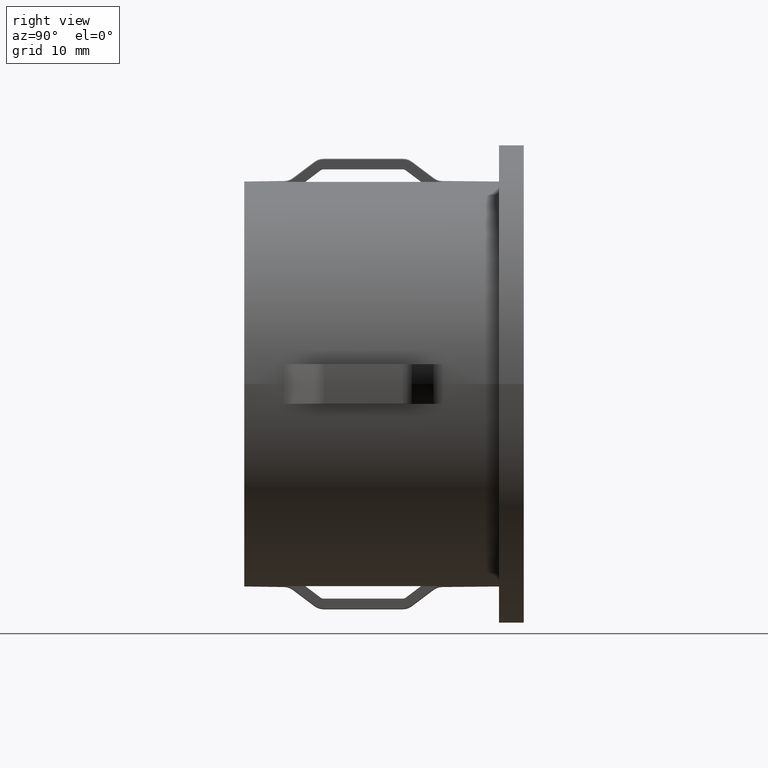
[diagram: clean part render]
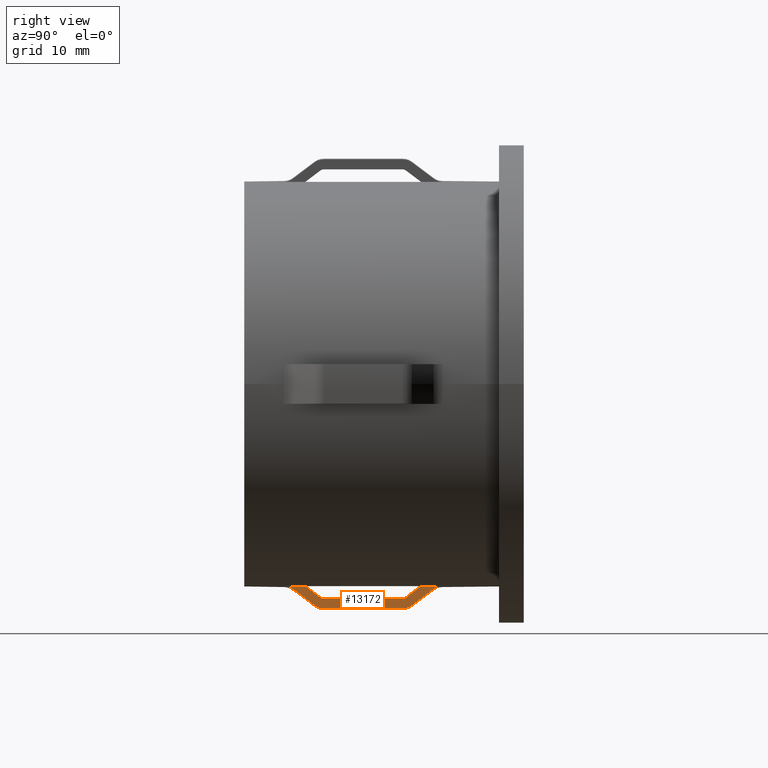
[diagram: same view with one face highlighted and labeled with its STEP entity id]
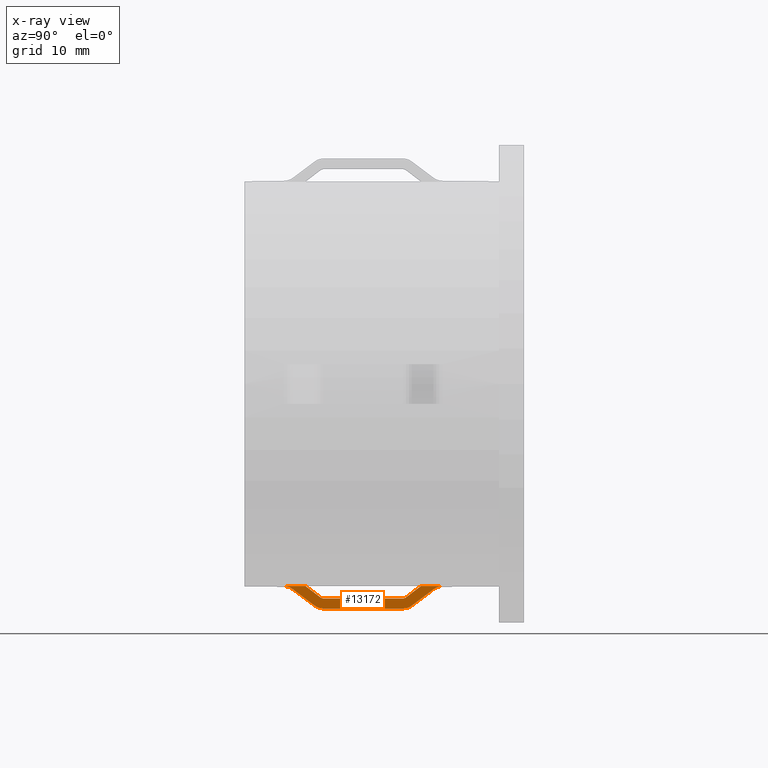
[diagram: x-ray of the same camera — body ghosted, the highlighted face saturated]
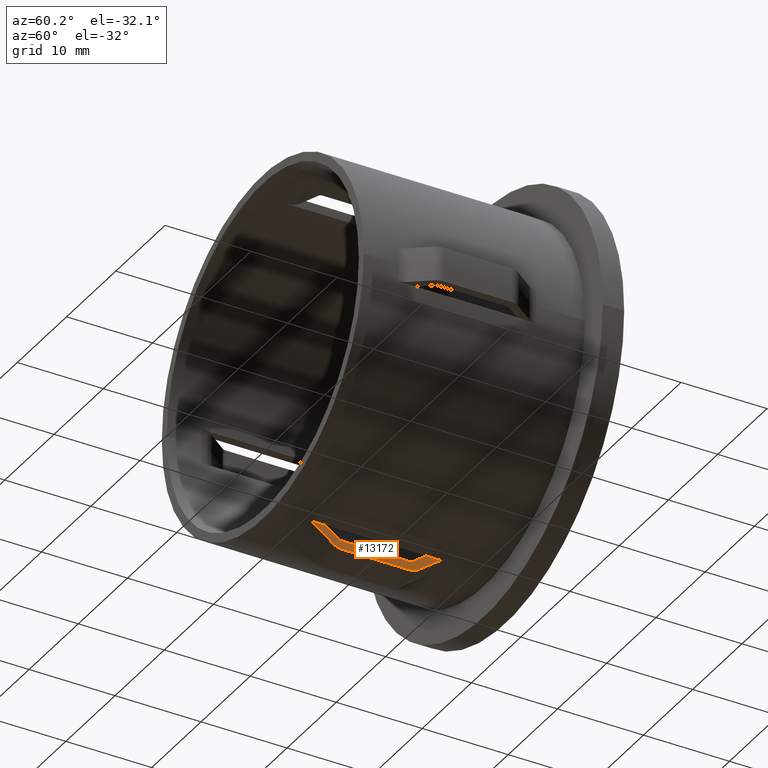
[diagram: same view with one face highlighted and labeled with its STEP entity id]
A machine part, right view. The second image highlights one B-rep face of the part: STEP entity #13172.
The next image is the same camera in x-ray: the body ghosted, the highlighted face saturated — about 0% of this face is hidden behind the body in this view.
A second angle (auxiliary view) of the same face is appended — the face is thin or edge-on in the first view.
In plain terms, the highlighted planar face has unit normal (-1, 0, -0).
Its self-contained STEP definition (entity closure, byte-faithful):
#123 = CARTESIAN_POINT ( 'NONE',  ( 2.000000000000004900, 16.29999999999999400, -21.55742331541504000 ) ) ;
#582 = LINE ( 'NONE', #9172, #8731 ) ;
#649 = DIRECTION ( 'NONE',  ( -1.000000000000000000, 0.0000000000000000000, -6.296814483065258400E-017 ) ) ;
#857 = VERTEX_POINT ( 'NONE', #14539 ) ;
#957 = CARTESIAN_POINT ( 'NONE',  ( 2.000000000000004000, 16.32024693304128200, -22.63607172904884700 ) ) ;
#1173 = CARTESIAN_POINT ( 'NONE',  ( 2.000000000000004900, 6.845021281521681500, -20.91337411212601400 ) ) ;
#1248 = CARTESIAN_POINT ( 'NONE',  ( 2.000000000000004400, 7.893342187878594100, -21.64926511843250600 ) ) ;
#1391 = CARTESIAN_POINT ( 'NONE',  ( 2.000000000000004000, 16.20966438327877800, -21.61478098976090200 ) ) ;
#1421 = CARTESIAN_POINT ( 'NONE',  ( 2.000000000000004900, 7.099999999999995200, -22.36073567662746300 ) ) ;
#1844 = EDGE_CURVE ( 'NONE', #12976, #3058, #12388, .T. ) ;
#2051 = CARTESIAN_POINT ( 'NONE',  ( 2.000000000000004900, 17.80380040649288300, -21.68013897667760000 ) ) ;
#2058 = DIRECTION ( 'NONE',  ( -0.0000000000000000000, -1.000000000000000000, -0.0000000000000000000 ) ) ;
#2165 = EDGE_CURVE ( 'NONE', #12092, #7049, #11131, .T. ) ;
#2392 = CARTESIAN_POINT ( 'NONE',  ( 2.000000000000004900, 7.099999999999995200, -22.36073567662746300 ) ) ;
#2458 = CARTESIAN_POINT ( 'NONE',  ( 2.000000000000004900, 16.58087638457387000, -21.34585242861321000 ) ) ;
#2510 = CARTESIAN_POINT ( 'NONE',  ( 2.000000000000004900, 17.41587950198355700, -20.71679687798204100 ) ) ;
#2527 = CARTESIAN_POINT ( 'NONE',  ( 2.000000000000004900, 15.99999999999999600, -21.65785077056354500 ) ) ;
#2539 = CARTESIAN_POINT ( 'NONE',  ( 2.000000000000004900, 7.791146175831323200, -21.61514054676552000 ) ) ;
#2544 = CARTESIAN_POINT ( 'NONE',  ( 2.000000000000004900, 4.160430435202035100, -20.40220576310315400 ) ) ;
#2558 = CARTESIAN_POINT ( 'NONE',  ( 2.000000000000004900, 5.896510393787133700, -21.45436331679245600 ) ) ;
#2607 = CARTESIAN_POINT ( 'NONE',  ( 2.000000000000004900, 16.48725237048967800, -21.41637797909297800 ) ) ;
#2850 = CARTESIAN_POINT ( 'NONE',  ( 2.000000000000004900, 15.99999999999999600, -21.65785077056354500 ) ) ;
#2889 = CARTESIAN_POINT ( 'NONE',  ( 2.000000000000004900, 19.09999999999999400, -20.70362287137206200 ) ) ;
#3058 = VERTEX_POINT ( 'NONE', #10145 ) ;
#3081 = VERTEX_POINT ( 'NONE', #10384 ) ;
#3159 = CARTESIAN_POINT ( 'NONE',  ( 2.000000000000004900, 19.09999999999999400, -20.70362287137206200 ) ) ;
#3350 = VECTOR ( 'NONE', #2058, 1000.000000000000000 ) ;
#3441 = EDGE_CURVE ( 'NONE', #14585, #14845, #14802, .T. ) ;
#3465 = CARTESIAN_POINT ( 'NONE',  ( 2.000000000000004900, 6.333941285484216100, -20.52826029769647000 ) ) ;
#3484 = CARTESIAN_POINT ( 'NONE',  ( 2.000000000000004900, 19.22829741510356500, -20.60695188349469100 ) ) ;
#3535 = CARTESIAN_POINT ( 'NONE',  ( 2.000000000000004000, 19.83883962512609900, -20.40220576310316500 ) ) ;
#3550 = B_SPLINE_CURVE_WITH_KNOTS ( 'NONE', 3,
 ( #5667, #12608, #3465, #4673, #1173, #12799, #12751 ),
 .UNSPECIFIED., .F., .F.,
 ( 4, 3, 4 ),
 ( 0.004658617423264501900, 0.004972796847549565900, 0.006578419061399639100 ),
 .UNSPECIFIED. ) ;
#3592 = CARTESIAN_POINT ( 'NONE',  ( 2.000000000000004900, 4.899999999999994100, -20.70362287137205800 ) ) ;
#3612 = CARTESIAN_POINT ( 'NONE',  ( 2.000000000000004900, 16.99839244633291500, -21.03134390878813100 ) ) ;
#3632 = VERTEX_POINT ( 'NONE', #12187 ) ;
#3643 = CARTESIAN_POINT ( 'NONE',  ( 2.000000000000004900, 4.628772232002459600, -20.53145604125086300 ) ) ;
#3658 = CARTESIAN_POINT ( 'NONE',  ( 2.000000000000004900, 17.83333333333333900, -20.40220576310316900 ) ) ;
#3722 = CARTESIAN_POINT ( 'NONE',  ( 2.000000000000004900, 16.29999999999999400, -21.55742331541504000 ) ) ;
#3787 = CARTESIAN_POINT ( 'NONE',  ( 2.000000000000004000, 4.770854514726178100, -20.60631286998783900 ) ) ;
#4100 = CARTESIAN_POINT ( 'NONE',  ( 2.000000000000003600, 20.00000000000000000, 1.259362896613053900E-016 ) ) ;
#4318 = ORIENTED_EDGE ( 'NONE', *, *, #2165, .T. ) ;
#4332 = CARTESIAN_POINT ( 'NONE',  ( 2.000000000000004900, 20.00000000000000000, -20.40220576310316900 ) ) ;
#4465 = CARTESIAN_POINT ( 'NONE',  ( 2.000000000000004900, 16.29999999999999400, -21.55742331541504000 ) ) ;
#4546 = B_SPLINE_CURVE_WITH_KNOTS ( 'NONE', 3,
 ( #2527, #9296, #7569, #1391, #13314, #3722 ),
 .UNSPECIFIED., .F., .F.,
 ( 4, 2, 4 ),
 ( 0.002964423728254255400, 0.003124331397023042600, 0.003284239065791829900 ),
 .UNSPECIFIED. ) ;
#4673 = CARTESIAN_POINT ( 'NONE',  ( 2.000000000000004900, 6.417580562514555000, -20.59128495384231900 ) ) ;
#4682 = ORIENTED_EDGE ( 'NONE', *, *, #11025, .F. ) ;
#4703 = CARTESIAN_POINT ( 'NONE',  ( 2.000000000000005300, 7.742674516068005300, -21.58956664926881800 ) ) ;
#4771 = CARTESIAN_POINT ( 'NONE',  ( 2.000000000000004900, 7.999999999999994700, -22.66191739460718700 ) ) ;
#4835 = VERTEX_POINT ( 'NONE', #8966 ) ;
#4840 = CARTESIAN_POINT ( 'NONE',  ( 2.000000000000004000, 7.371312875035916300, -22.53287645610295100 ) ) ;
#4978 = DIRECTION ( 'NONE',  ( -0.0000000000000000000, -1.000000000000000000, -0.0000000000000000000 ) ) ;
#5056 = ORIENTED_EDGE ( 'NONE', *, *, #14912, .F. ) ;
#5081 = B_SPLINE_CURVE_WITH_KNOTS ( 'NONE', 3,
 ( #7825, #3535, #5797, #8282, #3484, #6910 ),
 .UNSPECIFIED., .F., .F.,
 ( 4, 2, 4 ),
 ( 0.008533971782424393900, 0.009013230849962031900, 0.009492489917499669800 ),
 .UNSPECIFIED. ) ;
#5210 = CARTESIAN_POINT ( 'NONE',  ( 2.000000000000004900, 3.999999999999993300, -20.40220576310316900 ) ) ;
#5464 = EDGE_CURVE ( 'NONE', #10120, #4835, #6226, .T. ) ;
#5513 = CARTESIAN_POINT ( 'NONE',  ( 2.000000000000004900, 17.07040117783342100, -22.23242241944547400 ) ) ;
#5537 = EDGE_LOOP ( 'NONE', ( #7377, #13915, #13873, #12491, #10725, #8720, #4318, #4682, #14495, #5056, #14628, #7843, #11890, #11540 ) ) ;
#5574 = EDGE_CURVE ( 'NONE', #12092, #14585, #3550, .T. ) ;
#5667 = CARTESIAN_POINT ( 'NONE',  ( 2.000000000000004900, 6.166666666666660700, -20.40220576310316900 ) ) ;
#5797 = CARTESIAN_POINT ( 'NONE',  ( 2.000000000000004900, 19.67935571221928000, -20.42820693981788300 ) ) ;
#5994 = CARTESIAN_POINT ( 'NONE',  ( 2.000000000000004900, 7.228701103503278900, -22.45764683650946500 ) ) ;
#6226 = B_SPLINE_CURVE_WITH_KNOTS ( 'NONE', 3,
 ( #1421, #14097, #9466, #2558, #7235, #10693, #11812 ),
 .UNSPECIFIED., .F., .F.,
 ( 4, 3, 4 ),
 ( 0.003987124733621771700, 0.005493742801606828000, 0.006741398259496354100 ),
 .UNSPECIFIED. ) ;
#6370 = CARTESIAN_POINT ( 'NONE',  ( 2.000000000000004900, 7.699999999999686700, -21.55742331541553400 ) ) ;
#6410 = PLANE ( 'NONE',  #11429 ) ;
#6488 = VECTOR ( 'NONE', #4978, 1000.000000000000000 ) ;
#6689 = CARTESIAN_POINT ( 'NONE',  ( 2.000000000000004900, 16.90000000000018700, -22.36073567662775100 ) ) ;
#6832 = FACE_OUTER_BOUND ( 'NONE', #5537, .T. ) ;
#6910 = CARTESIAN_POINT ( 'NONE',  ( 2.000000000000004900, 19.09999999999999400, -20.70362287137206200 ) ) ;
#6996 = EDGE_CURVE ( 'NONE', #14845, #8300, #582, .T. ) ;
#7030 = B_SPLINE_CURVE_WITH_KNOTS ( 'NONE', 3,
 ( #3592, #3787, #3643, #11745, #2544, #11846 ),
 .UNSPECIFIED., .F., .F.,
 ( 4, 2, 4 ),
 ( 0.008558704629883265600, 0.009038123160744567300, 0.009517541691605869000 ),
 .UNSPECIFIED. ) ;
#7049 = VERTEX_POINT ( 'NONE', #5210 ) ;
#7071 = CARTESIAN_POINT ( 'NONE',  ( 2.000000000000004900, 7.999999999999994700, -22.66191739460718700 ) ) ;
#7235 = CARTESIAN_POINT ( 'NONE',  ( 2.000000000000004900, 5.564321482277374100, -21.20414143193702100 ) ) ;
#7302 = EDGE_CURVE ( 'NONE', #3632, #3081, #10291, .T. ) ;
#7377 = ORIENTED_EDGE ( 'NONE', *, *, #13525, .T. ) ;
#7569 = CARTESIAN_POINT ( 'NONE',  ( 2.000000000000004900, 16.10731362755964100, -21.64913376969328600 ) ) ;
#7595 = LINE ( 'NONE', #8274, #6488 ) ;
#7825 = CARTESIAN_POINT ( 'NONE',  ( 2.000000000000005300, 19.99999999999999300, -20.40220576310316900 ) ) ;
#7843 = ORIENTED_EDGE ( 'NONE', *, *, #7302, .F. ) ;
#7939 = CARTESIAN_POINT ( 'NONE',  ( 2.000000000000004900, 16.16161085762216800, -22.66191739460719700 ) ) ;
#8274 = CARTESIAN_POINT ( 'NONE',  ( 2.000000000000004900, 20.00000000000000000, -22.66191739460718700 ) ) ;
#8282 = CARTESIAN_POINT ( 'NONE',  ( 2.000000000000004000, 19.37420488999027100, -20.53013930579770400 ) ) ;
#8286 = CARTESIAN_POINT ( 'NONE',  ( 2.000000000000004000, 7.840029269341387800, -22.66191739460720100 ) ) ;
#8300 = VERTEX_POINT ( 'NONE', #2850 ) ;
#8570 = DIRECTION ( 'NONE',  ( -0.0000000000000000000, -1.000000000000000000, -0.0000000000000000000 ) ) ;
#8720 = ORIENTED_EDGE ( 'NONE', *, *, #5574, .F. ) ;
#8731 = VECTOR ( 'NONE', #14764, 1000.000000000000000 ) ;
#8966 = CARTESIAN_POINT ( 'NONE',  ( 2.000000000000004900, 4.899999999999994100, -20.70362287137205800 ) ) ;
#8969 = EDGE_CURVE ( 'NONE', #8300, #12976, #4546, .T. ) ;
#9048 = VERTEX_POINT ( 'NONE', #2889 ) ;
#9172 = CARTESIAN_POINT ( 'NONE',  ( 2.000000000000004900, 28.19999999999999900, -21.65785077056354500 ) ) ;
#9296 = CARTESIAN_POINT ( 'NONE',  ( 2.000000000000004000, 16.05333797749026600, -21.65785077056355600 ) ) ;
#9466 = CARTESIAN_POINT ( 'NONE',  ( 2.000000000000004900, 6.297648236605377600, -21.75652110604749000 ) ) ;
#10120 = VERTEX_POINT ( 'NONE', #11679 ) ;
#10145 = CARTESIAN_POINT ( 'NONE',  ( 2.000000000000004900, 17.83333333333333900, -20.40220576310316900 ) ) ;
#10171 = CARTESIAN_POINT ( 'NONE',  ( 2.000000000000004900, 16.90000000000018700, -22.36073567662775100 ) ) ;
#10270 = B_SPLINE_CURVE_WITH_KNOTS ( 'NONE', 3,
 ( #3159, #13607, #2051, #12502, #5513, #13656, #6689 ),
 .UNSPECIFIED., .F., .F.,
 ( 4, 3, 4 ),
 ( 0.003059433329653289300, 0.005493742908595074400, 0.005813706827018439900 ),
 .UNSPECIFIED. ) ;
#10291 = B_SPLINE_CURVE_WITH_KNOTS ( 'NONE', 3,
 ( #10171, #14806, #11488, #957, #7939, #13789 ),
 .UNSPECIFIED., .F., .F.,
 ( 4, 2, 4 ),
 ( 0.008969584436048913200, 0.009448924133632647500, 0.009928263831216383600 ),
 .UNSPECIFIED. ) ;
#10384 = CARTESIAN_POINT ( 'NONE',  ( 2.000000000000004900, 15.99999999999999300, -22.66191739460718700 ) ) ;
#10492 = CARTESIAN_POINT ( 'NONE',  ( 2.000000000000004900, 16.39362689476468300, -21.48690158925612100 ) ) ;
#10619 = CARTESIAN_POINT ( 'NONE',  ( 2.000000000000004900, 7.678083568773219600, -22.63576449502780700 ) ) ;
#10622 = CARTESIAN_POINT ( 'NONE',  ( 2.000000000000008400, 7.999999999999989300, -21.65785077056354500 ) ) ;
#10693 = CARTESIAN_POINT ( 'NONE',  ( 2.000000000000004900, 5.232150670285381700, -20.95389551634072900 ) ) ;
#10725 = ORIENTED_EDGE ( 'NONE', *, *, #3441, .F. ) ;
#10822 = VECTOR ( 'NONE', #8570, 1000.000000000000000 ) ;
#10951 = CARTESIAN_POINT ( 'NONE',  ( 2.000000000000004900, 20.00000000000000000, -20.40220576310316900 ) ) ;
#11025 = EDGE_CURVE ( 'NONE', #4835, #7049, #7030, .T. ) ;
#11131 = LINE ( 'NONE', #4332, #3350 ) ;
#11176 = DIRECTION ( 'NONE',  ( -6.296814483065258400E-017, 0.0000000000000000000, 1.000000000000000000 ) ) ;
#11429 = AXIS2_PLACEMENT_3D ( 'NONE', #4100, #649, #11176 ) ;
#11488 = CARTESIAN_POINT ( 'NONE',  ( 2.000000000000004900, 16.62617009017515800, -22.53396991080788300 ) ) ;
#11540 = ORIENTED_EDGE ( 'NONE', *, *, #14267, .F. ) ;
#11549 = LINE ( 'NONE', #10951, #10822 ) ;
#11560 = EDGE_CURVE ( 'NONE', #3081, #12758, #7595, .T. ) ;
#11679 = CARTESIAN_POINT ( 'NONE',  ( 2.000000000000004900, 7.099999999999995200, -22.36073567662746300 ) ) ;
#11689 = CARTESIAN_POINT ( 'NONE',  ( 2.000000000000004900, 7.699999999999686700, -21.55742331541553400 ) ) ;
#11745 = CARTESIAN_POINT ( 'NONE',  ( 2.000000000000004000, 4.322993792427420000, -20.42867507051473600 ) ) ;
#11812 = CARTESIAN_POINT ( 'NONE',  ( 2.000000000000004900, 4.899999999999994100, -20.70362287137205800 ) ) ;
#11846 = CARTESIAN_POINT ( 'NONE',  ( 2.000000000000004900, 3.999999999999993300, -20.40220576310316900 ) ) ;
#11890 = ORIENTED_EDGE ( 'NONE', *, *, #12462, .F. ) ;
#12063 = CARTESIAN_POINT ( 'NONE',  ( 2.000000000000004900, 6.166666666666660700, -20.40220576310316900 ) ) ;
#12092 = VERTEX_POINT ( 'NONE', #12063 ) ;
#12187 = CARTESIAN_POINT ( 'NONE',  ( 2.000000000000004900, 16.90000000000018700, -22.36073567662775100 ) ) ;
#12388 = B_SPLINE_CURVE_WITH_KNOTS ( 'NONE', 3,
 ( #123, #10492, #2607, #2458, #3612, #2510, #3658 ),
 .UNSPECIFIED., .F., .F.,
 ( 4, 3, 4 ),
 ( 0.004621152260290392400, 0.004972796649735582900, 0.006540953980559985200 ),
 .UNSPECIFIED. ) ;
#12462 = EDGE_CURVE ( 'NONE', #9048, #3632, #10270, .T. ) ;
#12491 = ORIENTED_EDGE ( 'NONE', *, *, #6996, .F. ) ;
#12502 = CARTESIAN_POINT ( 'NONE',  ( 2.000000000000004900, 17.15560015973014900, -22.16826365679140000 ) ) ;
#12608 = CARTESIAN_POINT ( 'NONE',  ( 2.000000000000004900, 6.250303308049835100, -20.46523391683308500 ) ) ;
#12751 = CARTESIAN_POINT ( 'NONE',  ( 2.000000000000004900, 7.699999999999686700, -21.55742331541553400 ) ) ;
#12758 = VERTEX_POINT ( 'NONE', #4771 ) ;
#12778 = CARTESIAN_POINT ( 'NONE',  ( 2.000000000000008400, 7.999999999999989300, -21.65785077056354500 ) ) ;
#12799 = CARTESIAN_POINT ( 'NONE',  ( 2.000000000000004900, 7.272495880075079600, -21.23541831297502100 ) ) ;
#12922 = CARTESIAN_POINT ( 'NONE',  ( 2.000000000000004400, 7.945999531670819000, -21.65785077056354900 ) ) ;
#12976 = VERTEX_POINT ( 'NONE', #4465 ) ;
#13172 = ADVANCED_FACE ( 'NONE', ( #6832 ), #6410, .F. ) ;
#13314 = CARTESIAN_POINT ( 'NONE',  ( 2.000000000000004900, 16.25703324299176700, -21.58978677122853500 ) ) ;
#13525 = EDGE_CURVE ( 'NONE', #857, #3058, #11549, .T. ) ;
#13607 = CARTESIAN_POINT ( 'NONE',  ( 2.000000000000004900, 18.45193842219781300, -21.19193164112334000 ) ) ;
#13649 = B_SPLINE_CURVE_WITH_KNOTS ( 'NONE', 3,
 ( #7071, #8286, #10619, #4840, #5994, #2392 ),
 .UNSPECIFIED., .F., .F.,
 ( 4, 2, 4 ),
 ( 0.008872696262132400200, 0.009352479114629566600, 0.009832261967126734700 ),
 .UNSPECIFIED. ) ;
#13656 = CARTESIAN_POINT ( 'NONE',  ( 2.000000000000004900, 16.98520111537146300, -22.29657974719772500 ) ) ;
#13789 = CARTESIAN_POINT ( 'NONE',  ( 2.000000000000004900, 15.99999999999999300, -22.66191739460718700 ) ) ;
#13873 = ORIENTED_EDGE ( 'NONE', *, *, #8969, .F. ) ;
#13915 = ORIENTED_EDGE ( 'NONE', *, *, #1844, .F. ) ;
#14097 = CARTESIAN_POINT ( 'NONE',  ( 2.000000000000004900, 6.698812466233847300, -22.05864386723998600 ) ) ;
#14267 = EDGE_CURVE ( 'NONE', #857, #9048, #5081, .T. ) ;
#14495 = ORIENTED_EDGE ( 'NONE', *, *, #5464, .F. ) ;
#14539 = CARTESIAN_POINT ( 'NONE',  ( 2.000000000000005300, 19.99999999999999300, -20.40220576310316900 ) ) ;
#14585 = VERTEX_POINT ( 'NONE', #6370 ) ;
#14628 = ORIENTED_EDGE ( 'NONE', *, *, #11560, .F. ) ;
#14764 = DIRECTION ( 'NONE',  ( -1.714505518806297100E-016, 1.000000000000000000, -0.0000000000000000000 ) ) ;
#14802 = B_SPLINE_CURVE_WITH_KNOTS ( 'NONE', 3,
 ( #11689, #4703, #2539, #1248, #12922, #10622 ),
 .UNSPECIFIED., .F., .F.,
 ( 4, 2, 4 ),
 ( 0.002982968478880424800, 0.003142785955063254500, 0.003302603431246082100 ),
 .UNSPECIFIED. ) ;
#14806 = CARTESIAN_POINT ( 'NONE',  ( 2.000000000000004000, 16.77184250550833500, -22.45723750218051900 ) ) ;
#14845 = VERTEX_POINT ( 'NONE', #12778 ) ;
#14912 = EDGE_CURVE ( 'NONE', #12758, #10120, #13649, .T. ) ;